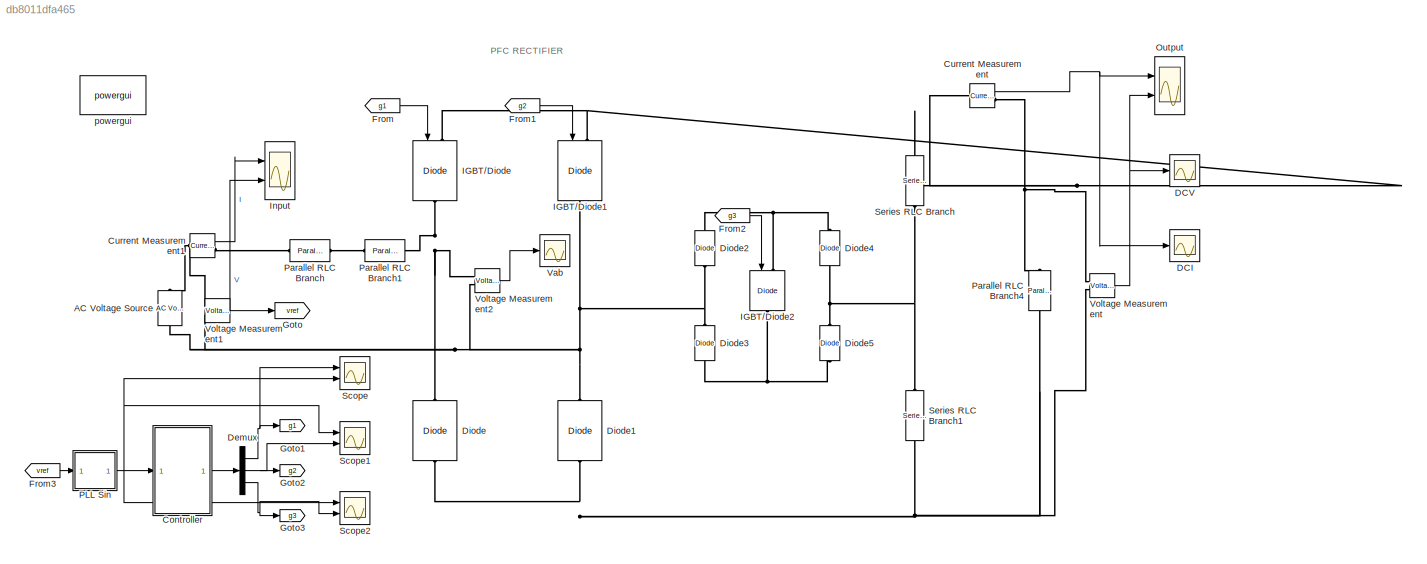
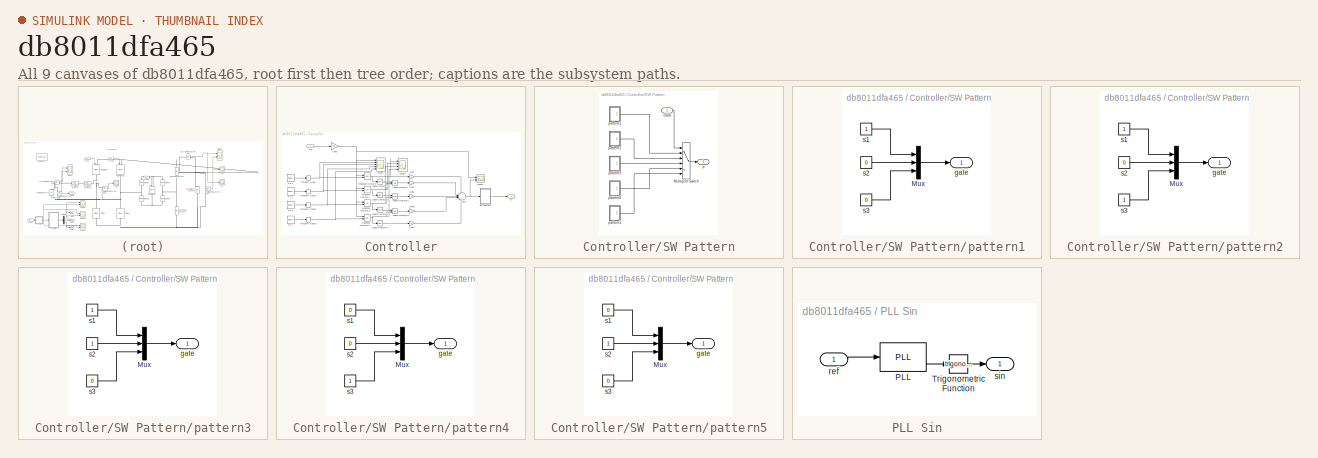
[diagram: thumbnail index - all 9 canvases of the model, root first then tree order]
MODEL slx_db8011dfa465
KIND model
CONFIG AbsTol = auto
CONFIG FixedStep = auto
CONFIG InitFcn = Ts=50e-6;\nfs=5e3;\nfreq=60;\n
CONFIG MaxStep = auto
CONFIG MinStep = auto
CONFIG RelTol = 1e-3
CONFIG SampleTimeConstraint = Unconstrained
CONFIG Solver = VariableStepAuto
CONFIG SolverMode = Auto
CONFIG SolverName = VariableStepAuto
CONFIG StartTime = 0.0
CONFIG StopTime = 1
BLOCK [Reference] AC Voltage Source  REF=powerlib/Electrical
Sources/AC Voltage Source
  Ports = [0, 0, 0, 0, 0, 1, 1]
  SourceBlock = powerlib/Electrical\nSources/AC Voltage Source
  SourceType = AC Voltage Source
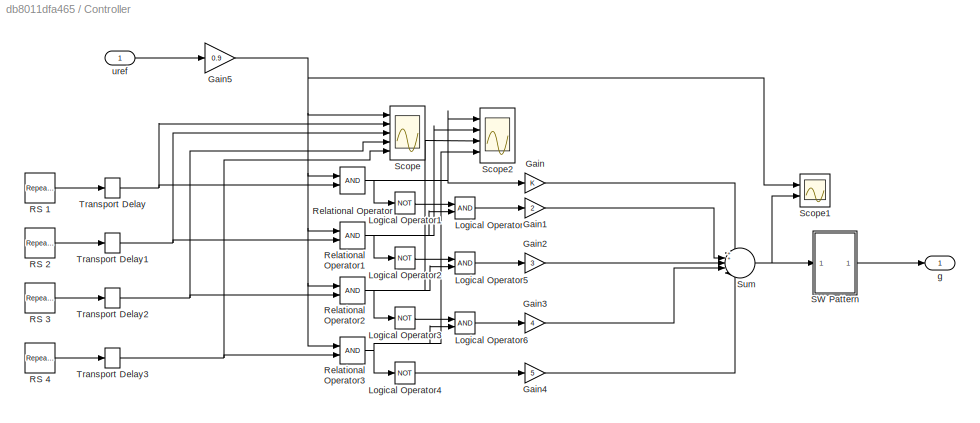
BLOCK [SubSystem] Controller
  Ports = [1, 1]
  RequestExecContextInheritance = off
  Variant = off
BLOCK [Gain] Controller/Gain
  OutDataTypeStr = Inherit: Inherit via internal rule
  ParamDataTypeStr = Inherit: Inherit via internal rule
  SaturateOnIntegerOverflow = off
BLOCK [Gain] Controller/Gain1
  Gain = 2
  OutDataTypeStr = Inherit: Inherit via internal rule
  ParamDataTypeStr = Inherit: Inherit via internal rule
  SaturateOnIntegerOverflow = off
BLOCK [Gain] Controller/Gain2
  Gain = 3
  OutDataTypeStr = Inherit: Inherit via internal rule
  ParamDataTypeStr = Inherit: Inherit via internal rule
  SaturateOnIntegerOverflow = off
BLOCK [Gain] Controller/Gain3
  Gain = 4
  OutDataTypeStr = Inherit: Inherit via internal rule
  ParamDataTypeStr = Inherit: Inherit via internal rule
  SaturateOnIntegerOverflow = off
BLOCK [Gain] Controller/Gain4
  Gain = 5
  OutDataTypeStr = Inherit: Inherit via internal rule
  ParamDataTypeStr = Inherit: Inherit via internal rule
  SaturateOnIntegerOverflow = off
BLOCK [Gain] Controller/Gain5
  Gain = 0.9
  OutDataTypeStr = Inherit: Inherit via internal rule
  ParamDataTypeStr = Inherit: Inherit via internal rule
  SaturateOnIntegerOverflow = off
BLOCK [Logic] Controller/Logical Operator
  AllPortsSameDT = off
  OutDataTypeStr = boolean
  Ports = [2, 1]
BLOCK [Logic] Controller/Logical Operator1
  AllPortsSameDT = off
  Operator = NOT
  OutDataTypeStr = boolean
  Ports = [1, 1]
BLOCK [Logic] Controller/Logical Operator2
  AllPortsSameDT = off
  Operator = NOT
  OutDataTypeStr = boolean
  Ports = [1, 1]
BLOCK [Logic] Controller/Logical Operator3
  AllPortsSameDT = off
  Operator = NOT
  OutDataTypeStr = boolean
  Ports = [1, 1]
BLOCK [Logic] Controller/Logical Operator4
  AllPortsSameDT = off
  Operator = NOT
  OutDataTypeStr = boolean
  Ports = [1, 1]
BLOCK [Logic] Controller/Logical Operator5
  AllPortsSameDT = off
  OutDataTypeStr = boolean
  Ports = [2, 1]
BLOCK [Logic] Controller/Logical Operator6
  AllPortsSameDT = off
  OutDataTypeStr = boolean
  Ports = [2, 1]
BLOCK [Reference] Controller/RS 1  REF=simulink/Sources/Repeating
Sequence
  Ports = [0, 1]
  SourceBlock = simulink/Sources/Repeating\nSequence
  SourceType = Repeating table
BLOCK [Reference] Controller/RS 2  REF=simulink/Sources/Repeating
Sequence
  Ports = [0, 1]
  SourceBlock = simulink/Sources/Repeating\nSequence
  SourceType = Repeating table
BLOCK [Reference] Controller/RS 3  REF=simulink/Sources/Repeating
Sequence
  Ports = [0, 1]
  SourceBlock = simulink/Sources/Repeating\nSequence
  SourceType = Repeating table
BLOCK [Reference] Controller/RS 4  REF=simulink/Sources/Repeating
Sequence
  Ports = [0, 1]
  SourceBlock = simulink/Sources/Repeating\nSequence
  SourceType = Repeating table
BLOCK [RelationalOperator] Controller/Relational Operator
  InputSameDT = off
  OutDataTypeStr = boolean
  Ports = [2, 1]
  ZeroCross = off
BLOCK [RelationalOperator] Controller/Relational Operator1
  InputSameDT = off
  OutDataTypeStr = boolean
  Ports = [2, 1]
  ZeroCross = off
BLOCK [RelationalOperator] Controller/Relational Operator2
  InputSameDT = off
  OutDataTypeStr = boolean
  Ports = [2, 1]
  ZeroCross = off
BLOCK [RelationalOperator] Controller/Relational Operator3
  InputSameDT = off
  OutDataTypeStr = boolean
  Ports = [2, 1]
  ZeroCross = off
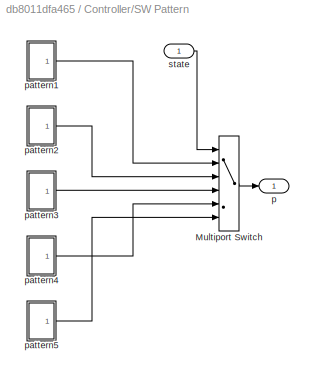
BLOCK [SubSystem] Controller/SW Pattern
  Ports = [1, 1]
  RequestExecContextInheritance = off
  Variant = off
BLOCK [MultiPortSwitch] Controller/SW Pattern/Multiport Switch
  InputSameDT = off
  Inputs = 5
  Ports = [6, 1]
  SaturateOnIntegerOverflow = off
BLOCK [Outport] Controller/SW Pattern/p
  IconDisplay = Port number
BLOCK [SubSystem] Controller/SW Pattern/pattern1
  Ports = [0, 1]
  RequestExecContextInheritance = off
  Variant = off
BLOCK [Mux] Controller/SW Pattern/pattern1/Mux
  DisplayOption = bar
  Inputs = 3
  Ports = [3, 1]
BLOCK [Outport] Controller/SW Pattern/pattern1/gate
  IconDisplay = Port number
BLOCK [Constant] Controller/SW Pattern/pattern1/s1
BLOCK [Constant] Controller/SW Pattern/pattern1/s2
  Value = 0
BLOCK [Constant] Controller/SW Pattern/pattern1/s3
  Value = 0
BLOCK [SubSystem] Controller/SW Pattern/pattern2
  Ports = [0, 1]
  RequestExecContextInheritance = off
  Variant = off
BLOCK [Mux] Controller/SW Pattern/pattern2/Mux
  DisplayOption = bar
  Inputs = 3
  Ports = [3, 1]
BLOCK [Outport] Controller/SW Pattern/pattern2/gate
  IconDisplay = Port number
BLOCK [Constant] Controller/SW Pattern/pattern2/s1
BLOCK [Constant] Controller/SW Pattern/pattern2/s2
  Value = 0
BLOCK [Constant] Controller/SW Pattern/pattern2/s3
BLOCK [SubSystem] Controller/SW Pattern/pattern3
  Ports = [0, 1]
  RequestExecContextInheritance = off
  Variant = off
BLOCK [Mux] Controller/SW Pattern/pattern3/Mux
  DisplayOption = bar
  Inputs = 3
  Ports = [3, 1]
BLOCK [Outport] Controller/SW Pattern/pattern3/gate
  IconDisplay = Port number
BLOCK [Constant] Controller/SW Pattern/pattern3/s1
BLOCK [Constant] Controller/SW Pattern/pattern3/s2
BLOCK [Constant] Controller/SW Pattern/pattern3/s3
  Value = 0
BLOCK [SubSystem] Controller/SW Pattern/pattern4
  Ports = [0, 1]
  RequestExecContextInheritance = off
  Variant = off
BLOCK [Mux] Controller/SW Pattern/pattern4/Mux
  DisplayOption = bar
  Inputs = 3
  Ports = [3, 1]
BLOCK [Outport] Controller/SW Pattern/pattern4/gate
  IconDisplay = Port number
BLOCK [Constant] Controller/SW Pattern/pattern4/s1
  Value = 0
BLOCK [Constant] Controller/SW Pattern/pattern4/s2
  Value = 0
BLOCK [Constant] Controller/SW Pattern/pattern4/s3
BLOCK [SubSystem] Controller/SW Pattern/pattern5
  Ports = [0, 1]
  RequestExecContextInheritance = off
  Variant = off
BLOCK [Mux] Controller/SW Pattern/pattern5/Mux
  DisplayOption = bar
  Inputs = 3
  Ports = [3, 1]
BLOCK [Outport] Controller/SW Pattern/pattern5/gate
  IconDisplay = Port number
BLOCK [Constant] Controller/SW Pattern/pattern5/s1
  Value = 0
BLOCK [Constant] Controller/SW Pattern/pattern5/s2
BLOCK [Constant] Controller/SW Pattern/pattern5/s3
  Value = 0
BLOCK [Inport] Controller/SW Pattern/state
  IconDisplay = Port number
BLOCK [Scope] Controller/Scope
  NumInputPorts = 5
  Ports = [5]
  ScopeSpecificationString = Simulink.scopes.TimeScopeBlockCfg('CurrentConfiguration', extmgr.ConfigurationSet(extmgr.Configuration('Core','General UI',true),extmgr.Configuration('Core','Source UI',true),extmgr.Configuration('Sources','WiredSimulink',true,'DataLoggingVariableName','ScopeData5'),extmgr.Configuration('Visuals','Time Domain',true,'SerializedDisplays',{struct('MinYLimReal','-1.32133','MaxYLimReal','1.29563','YLab...<+1463ch>
BLOCK [Scope] Controller/Scope1
  NumInputPorts = 2
  Ports = [2]
  ScopeSpecificationString = Simulink.scopes.TimeScopeBlockCfg('CurrentConfiguration', extmgr.ConfigurationSet(extmgr.Configuration('Core','General UI',true),extmgr.Configuration('Core','Source UI',true),extmgr.Configuration('Sources','WiredSimulink',true,'DataLoggingVariableName','ScopeData6'),extmgr.Configuration('Visuals','Time Domain',true,'SerializedDisplays',{struct('MinYLimReal','-1.75','MaxYLimReal','5.75','YLabelReal...<+1430ch>
BLOCK [Scope] Controller/Scope2
  NumInputPorts = 4
  Ports = [4]
  ScopeSpecificationString = Simulink.scopes.TimeScopeBlockCfg('CurrentConfiguration', extmgr.ConfigurationSet(extmgr.Configuration('Core','General UI',true),extmgr.Configuration('Core','Source UI',true),extmgr.Configuration('Sources','WiredSimulink',true,'DataLoggingVariableName','ScopeData7'),extmgr.Configuration('Visuals','Time Domain',true,'SerializedDisplays',{struct('MinYLimReal','-0.125','MaxYLimReal','1.125','YLabelRe...<+1487ch>
BLOCK [Sum] Controller/Sum
  IconShape = round
  InputSameDT = off
  Inputs = 5
  OutDataTypeStr = Inherit: Inherit via internal rule
  Ports = [5, 1]
  SaturateOnIntegerOverflow = off
BLOCK [TransportDelay] Controller/Transport Delay
  DelayTime = (1/(fs*8))*1
  Ports = [1, 1]
BLOCK [TransportDelay] Controller/Transport Delay1
  DelayTime = (1/(fs*8))*1
  Ports = [1, 1]
BLOCK [TransportDelay] Controller/Transport Delay2
  DelayTime = (1/(fs*8))*1
  Ports = [1, 1]
BLOCK [TransportDelay] Controller/Transport Delay3
  DelayTime = (1/(fs*8))*1
  Ports = [1, 1]
BLOCK [Outport] Controller/g
  IconDisplay = Port number
BLOCK [Inport] Controller/uref
  IconDisplay = Port number
BLOCK [Reference] Current Measurement  REF=powerlib/Measurements/Current Measurement
  Ports = [0, 1, 0, 0, 0, 1, 1]
  SourceBlock = powerlib/Measurements/Current Measurement
  SourceType = Current Measurement
  UserDataPersistent = on
BLOCK [Reference] Current Measurement1  REF=powerlib/Measurements/Current Measurement
  Ports = [0, 1, 0, 0, 0, 1, 1]
  SourceBlock = powerlib/Measurements/Current Measurement
  SourceType = Current Measurement
  UserDataPersistent = on
BLOCK [Scope] DCI
  Ports = [1]
  ScopeSpecificationString = Simulink.scopes.TimeScopeBlockCfg('CurrentConfiguration', extmgr.ConfigurationSet(extmgr.Configuration('Core','General UI',true),extmgr.Configuration('Core','Source UI',true),extmgr.Configuration('Sources','WiredSimulink',true,'DataLoggingVariableName','ScopeData10'),extmgr.Configuration('Visuals','Time Domain',true,'SerializedDisplays',{struct('MinYLimReal','-0.45508','MaxYLimReal','4.09541','YLa...<+1406ch>
BLOCK [Scope] DCV
  Ports = [1]
  ScopeSpecificationString = Simulink.scopes.TimeScopeBlockCfg('CurrentConfiguration', extmgr.ConfigurationSet(extmgr.Configuration('Core','General UI',true),extmgr.Configuration('Core','Source UI',true),extmgr.Configuration('Sources','WiredSimulink',true,'DataLoggingVariableName','ScopeData9'),extmgr.Configuration('Visuals','Time Domain',true,'SerializedDisplays',{struct('MinYLimReal','-36.40671','MaxYLimReal','327.63308','Y...<+1440ch>
BLOCK [Demux] Demux
  DisplayOption = bar
  Outputs = 3
  Ports = [1, 3]
BLOCK [Reference] Diode  REF=powerlib/Power
Electronics/Diode
  Ports = [0, 0, 0, 0, 0, 1, 1]
  SourceBlock = powerlib/Power\nElectronics/Diode
  SourceType = Diode
BLOCK [Reference] Diode1  REF=powerlib/Power
Electronics/Diode
  Ports = [0, 0, 0, 0, 0, 1, 1]
  SourceBlock = powerlib/Power\nElectronics/Diode
  SourceType = Diode
BLOCK [Reference] Diode2  REF=powerlib/Power
Electronics/Diode
  Ports = [0, 0, 0, 0, 0, 1, 1]
  SourceBlock = powerlib/Power\nElectronics/Diode
  SourceType = Diode
BLOCK [Reference] Diode3  REF=powerlib/Power
Electronics/Diode
  Ports = [0, 0, 0, 0, 0, 1, 1]
  SourceBlock = powerlib/Power\nElectronics/Diode
  SourceType = Diode
BLOCK [Reference] Diode4  REF=powerlib/Power
Electronics/Diode
  Ports = [0, 0, 0, 0, 0, 1, 1]
  SourceBlock = powerlib/Power\nElectronics/Diode
  SourceType = Diode
BLOCK [Reference] Diode5  REF=powerlib/Power
Electronics/Diode
  Ports = [0, 0, 0, 0, 0, 1, 1]
  SourceBlock = powerlib/Power\nElectronics/Diode
  SourceType = Diode
BLOCK [From] From
  GotoTag = g1
BLOCK [From] From1
  GotoTag = g2
BLOCK [From] From2
  GotoTag = g3
BLOCK [From] From3
  GotoTag = vref
BLOCK [Goto] Goto
  GotoTag = vref
BLOCK [Goto] Goto1
  GotoTag = g1
BLOCK [Goto] Goto2
  GotoTag = g2
BLOCK [Goto] Goto3
  GotoTag = g3
BLOCK [Reference] IGBT//Diode  REF=powerlib/Power
Electronics/IGBT//Diode
  Ports = [1, 0, 0, 0, 0, 1, 1]
  SourceBlock = powerlib/Power\nElectronics/IGBT//Diode
  SourceType = IGBT/Diode
BLOCK [Reference] IGBT//Diode1  REF=powerlib/Power
Electronics/IGBT//Diode
  Ports = [1, 0, 0, 0, 0, 1, 1]
  SourceBlock = powerlib/Power\nElectronics/IGBT//Diode
  SourceType = IGBT/Diode
BLOCK [Reference] IGBT//Diode2  REF=powerlib/Power
Electronics/IGBT//Diode
  Ports = [1, 0, 0, 0, 0, 1, 1]
  SourceBlock = powerlib/Power\nElectronics/IGBT//Diode
  SourceType = IGBT/Diode
BLOCK [Scope] Input
  NumInputPorts = 2
  Ports = [2]
  ScopeSpecificationString = Simulink.scopes.TimeScopeBlockCfg('CurrentConfiguration', extmgr.ConfigurationSet(extmgr.Configuration('Core','General UI',true),extmgr.Configuration('Core','Source UI',true),extmgr.Configuration('Sources','WiredSimulink',true),extmgr.Configuration('Visuals','Time Domain',true,'SerializedDisplays',{struct('MinYLimReal','-97.24613','MaxYLimReal','53.35628','YLabelReal','','MinYLimMag','0.00000','Ma...<+1402ch>
BLOCK [Scope] Output
  NumInputPorts = 2
  Ports = [2]
  ScopeSpecificationString = Simulink.scopes.TimeScopeBlockCfg('CurrentConfiguration', extmgr.ConfigurationSet(extmgr.Configuration('Core','General UI',true),extmgr.Configuration('Core','Source UI',true),extmgr.Configuration('Sources','WiredSimulink',true,'DataLoggingVariableName','ScopeData1'),extmgr.Configuration('Visuals','Time Domain',true,'SerializedDisplays',{struct('MinYLimReal','-36.40671','MaxYLimReal','327.63308','Y...<+1437ch>
BLOCK [SubSystem] PLL Sin
  Ports = [1, 1]
  RequestExecContextInheritance = off
  Variant = off
BLOCK [Reference] PLL Sin/PLL  REF=powerlib_meascontrol/PLL/PLL
  Ports = [1, 2]
  SourceBlock = powerlib_meascontrol/PLL/PLL
  SourceType = PLL
BLOCK [Trigonometry] PLL Sin/Trigonometric Function
  Ports = [1, 1]
BLOCK [Inport] PLL Sin/ref
  IconDisplay = Port number
BLOCK [Outport] PLL Sin/sin
  IconDisplay = Port number
BLOCK [Reference] Parallel RLC Branch  REF=powerlib/Elements/Parallel RLC Branch
  AttributesFormatString = \n
  Ports = [0, 0, 0, 0, 0, 1, 1]
  SourceBlock = powerlib/Elements/Parallel RLC Branch
  SourceType = Parallel RLC Branch
BLOCK [Reference] Parallel RLC Branch1  REF=powerlib/Elements/Parallel RLC Branch
  AttributesFormatString = \n
  Ports = [0, 0, 0, 0, 0, 1, 1]
  SourceBlock = powerlib/Elements/Parallel RLC Branch
  SourceType = Parallel RLC Branch
BLOCK [Reference] Parallel RLC Branch4  REF=powerlib/Elements/Parallel RLC Branch
  AttributesFormatString = \n
  Ports = [0, 0, 0, 0, 0, 1, 1]
  SourceBlock = powerlib/Elements/Parallel RLC Branch
  SourceType = Parallel RLC Branch
BLOCK [Scope] Scope
  NumInputPorts = 2
  Ports = [2]
  ScopeSpecificationString = Simulink.scopes.TimeScopeBlockCfg('CurrentConfiguration', extmgr.ConfigurationSet(extmgr.Configuration('Core','General UI',true),extmgr.Configuration('Core','Source UI',true),extmgr.Configuration('Sources','WiredSimulink',true,'DataLoggingVariableName','ScopeData2'),extmgr.Configuration('Visuals','Time Domain',true,'SerializedDisplays',{struct('MinYLimReal','-1.25','MaxYLimReal','1.25','YLabelReal...<+1410ch>
BLOCK [Scope] Scope1
  NumInputPorts = 2
  Ports = [2]
  ScopeSpecificationString = Simulink.scopes.TimeScopeBlockCfg('CurrentConfiguration', extmgr.ConfigurationSet(extmgr.Configuration('Core','General UI',true),extmgr.Configuration('Core','Source UI',true),extmgr.Configuration('Sources','WiredSimulink',true,'DataLoggingVariableName','ScopeData3'),extmgr.Configuration('Visuals','Time Domain',true,'SerializedDisplays',{struct('MinYLimReal','-1.25','MaxYLimReal','1.25','YLabelReal...<+1383ch>
BLOCK [Scope] Scope2
  NumInputPorts = 2
  Ports = [2]
  ScopeSpecificationString = Simulink.scopes.TimeScopeBlockCfg('CurrentConfiguration', extmgr.ConfigurationSet(extmgr.Configuration('Core','General UI',true),extmgr.Configuration('Core','Source UI',true),extmgr.Configuration('Sources','WiredSimulink',true,'DataLoggingVariableName','ScopeData4'),extmgr.Configuration('Visuals','Time Domain',true,'SerializedDisplays',{struct('MinYLimReal','-1.25','MaxYLimReal','1.25','YLabelReal...<+1410ch>
BLOCK [Reference] Series RLC Branch  REF=powerlib/Elements/Series RLC Branch
  Ports = [0, 0, 0, 0, 0, 1, 1]
  SourceBlock = powerlib/Elements/Series RLC Branch
  SourceType = Series RLC Branch
BLOCK [Reference] Series RLC Branch1  REF=powerlib/Elements/Series RLC Branch
  Ports = [0, 0, 0, 0, 0, 1, 1]
  SourceBlock = powerlib/Elements/Series RLC Branch
  SourceType = Series RLC Branch
BLOCK [Scope] Vab
  Ports = [1]
  ScopeSpecificationString = Simulink.scopes.TimeScopeBlockCfg('CurrentConfiguration', extmgr.ConfigurationSet(extmgr.Configuration('Core','General UI',true),extmgr.Configuration('Core','Source UI',true),extmgr.Configuration('Sources','WiredSimulink',true,'DataLoggingVariableName','ScopeData8'),extmgr.Configuration('Visuals','Time Domain',true,'SerializedDisplays',{struct('MinYLimReal','-346.4025','MaxYLimReal','299.99485','Y...<+1460ch>
BLOCK [Reference] Voltage Measurement  REF=powerlib/Measurements/Voltage Measurement
  Ports = [0, 1, 0, 0, 0, 2]
  SourceBlock = powerlib/Measurements/Voltage Measurement
  SourceType = Voltage Measurement
  UserDataPersistent = on
BLOCK [Reference] Voltage Measurement1  REF=powerlib/Measurements/Voltage Measurement
  Ports = [0, 1, 0, 0, 0, 2]
  SourceBlock = powerlib/Measurements/Voltage Measurement
  SourceType = Voltage Measurement
  UserDataPersistent = on
BLOCK [Reference] Voltage Measurement2  REF=powerlib/Measurements/Voltage Measurement
  Ports = [0, 1, 0, 0, 0, 2]
  SourceBlock = powerlib/Measurements/Voltage Measurement
  SourceType = Voltage Measurement
  UserDataPersistent = on
BLOCK [Reference] powergui  REF=powerlib/powergui
  Ports = []
  Priority = 1
  SourceBlock = powerlib/powergui
  SourceType = PSB option menu block
  UserDataPersistent = on
ANNOTATION (root): PFC RECTIFIER
LINE Controller/Gain1:1 -> Controller/Sum:2
LINE Controller/Gain2:1 -> Controller/Sum:3
LINE Controller/Gain3:1 -> Controller/Sum:4
LINE Controller/Gain4:1 -> Controller/Sum:5
NET Controller/Gain5:1 -> Controller/Relational Operator1:1, Controller/Relational Operator2:1, Controller/Relational Operator3:1, Controller/Relational Operator:1, Controller/Scope1:1, Controller/Scope:1
LINE Controller/Gain:1 -> Controller/Sum:1
LINE Controller/Logical Operator1:1 -> Controller/Logical Operator:1
LINE Controller/Logical Operator2:1 -> Controller/Logical Operator5:1
LINE Controller/Logical Operator3:1 -> Controller/Logical Operator6:1
LINE Controller/Logical Operator4:1 -> Controller/Gain4:1
LINE Controller/Logical Operator5:1 -> Controller/Gain2:1
LINE Controller/Logical Operator6:1 -> Controller/Gain3:1
LINE Controller/Logical Operator:1 -> Controller/Gain1:1
LINE Controller/RS 1:1 -> Controller/Transport Delay:1
LINE Controller/RS 2:1 -> Controller/Transport Delay1:1
LINE Controller/RS 3:1 -> Controller/Transport Delay2:1
LINE Controller/RS 4:1 -> Controller/Transport Delay3:1
NET Controller/Relational Operator1:1 -> Controller/Logical Operator2:1, Controller/Logical Operator:2, Controller/Scope2:2
NET Controller/Relational Operator2:1 -> Controller/Logical Operator3:1, Controller/Logical Operator5:2, Controller/Scope2:3
NET Controller/Relational Operator3:1 -> Controller/Logical Operator4:1, Controller/Logical Operator6:2, Controller/Scope2:4
NET Controller/Relational Operator:1 -> Controller/Gain:1, Controller/Logical Operator1:1, Controller/Scope2:1
LINE Controller/SW Pattern/Multiport Switch:1 -> Controller/SW Pattern/p:1
LINE Controller/SW Pattern/pattern1/Mux:1 -> Controller/SW Pattern/pattern1/gate:1
LINE Controller/SW Pattern/pattern1/s1:1 -> Controller/SW Pattern/pattern1/Mux:1
LINE Controller/SW Pattern/pattern1/s2:1 -> Controller/SW Pattern/pattern1/Mux:2
LINE Controller/SW Pattern/pattern1/s3:1 -> Controller/SW Pattern/pattern1/Mux:3
LINE Controller/SW Pattern/pattern1:1 -> Controller/SW Pattern/Multiport Switch:2
LINE Controller/SW Pattern/pattern2/Mux:1 -> Controller/SW Pattern/pattern2/gate:1
LINE Controller/SW Pattern/pattern2/s1:1 -> Controller/SW Pattern/pattern2/Mux:1
LINE Controller/SW Pattern/pattern2/s2:1 -> Controller/SW Pattern/pattern2/Mux:2
LINE Controller/SW Pattern/pattern2/s3:1 -> Controller/SW Pattern/pattern2/Mux:3
LINE Controller/SW Pattern/pattern2:1 -> Controller/SW Pattern/Multiport Switch:3
LINE Controller/SW Pattern/pattern3/Mux:1 -> Controller/SW Pattern/pattern3/gate:1
LINE Controller/SW Pattern/pattern3/s1:1 -> Controller/SW Pattern/pattern3/Mux:1
LINE Controller/SW Pattern/pattern3/s2:1 -> Controller/SW Pattern/pattern3/Mux:2
LINE Controller/SW Pattern/pattern3/s3:1 -> Controller/SW Pattern/pattern3/Mux:3
LINE Controller/SW Pattern/pattern3:1 -> Controller/SW Pattern/Multiport Switch:4
LINE Controller/SW Pattern/pattern4/Mux:1 -> Controller/SW Pattern/pattern4/gate:1
LINE Controller/SW Pattern/pattern4/s1:1 -> Controller/SW Pattern/pattern4/Mux:1
LINE Controller/SW Pattern/pattern4/s2:1 -> Controller/SW Pattern/pattern4/Mux:2
LINE Controller/SW Pattern/pattern4/s3:1 -> Controller/SW Pattern/pattern4/Mux:3
LINE Controller/SW Pattern/pattern4:1 -> Controller/SW Pattern/Multiport Switch:5
LINE Controller/SW Pattern/pattern5/Mux:1 -> Controller/SW Pattern/pattern5/gate:1
LINE Controller/SW Pattern/pattern5/s1:1 -> Controller/SW Pattern/pattern5/Mux:1
LINE Controller/SW Pattern/pattern5/s2:1 -> Controller/SW Pattern/pattern5/Mux:2
LINE Controller/SW Pattern/pattern5/s3:1 -> Controller/SW Pattern/pattern5/Mux:3
LINE Controller/SW Pattern/pattern5:1 -> Controller/SW Pattern/Multiport Switch:6
LINE Controller/SW Pattern/state:1 -> Controller/SW Pattern/Multiport Switch:1
LINE Controller/SW Pattern:1 -> Controller/g:1
NET Controller/Sum:1 -> Controller/SW Pattern:1, Controller/Scope1:2
NET Controller/Transport Delay1:1 -> Controller/Relational Operator1:2, Controller/Scope:3
NET Controller/Transport Delay2:1 -> Controller/Relational Operator2:2, Controller/Scope:4
NET Controller/Transport Delay3:1 -> Controller/Relational Operator3:2, Controller/Scope:5
NET Controller/Transport Delay:1 -> Controller/Relational Operator:2, Controller/Scope:2
LINE Controller/uref:1 -> Controller/Gain5:1
LINE Controller:1 -> Demux:1
LINE Current Measurement1:1 -> Input:1
NET Current Measurement:1 -> DCI:1, Output:1
NET Demux:1 -> Goto1:1, Scope:1
NET Demux:2 -> Goto2:1, Scope1:2
NET Demux:3 -> Goto3:1, Scope2:2
LINE From1:1 -> IGBT//Diode1:1
LINE From2:1 -> IGBT//Diode2:1
LINE From3:1 -> PLL Sin:1
LINE From:1 -> IGBT//Diode:1
LINE PLL Sin/PLL:2 -> PLL Sin/Trigonometric Function:1
LINE PLL Sin/Trigonometric Function:1 -> PLL Sin/sin:1
LINE PLL Sin/ref:1 -> PLL Sin/PLL:1
NET PLL Sin:1 -> Controller:1, Scope1:1, Scope2:1, Scope:2
NET Voltage Measurement1:1 -> Goto:1, Input:2
LINE Voltage Measurement2:1 -> Vab:1
NET Voltage Measurement:1 -> DCV:1, Output:2
PNET net1: AC Voltage Source:LConn1 -- Diode1:RConn1 -- Diode2:LConn1 -- Diode3:RConn1 -- IGBT//Diode1:RConn1 -- Voltage Measurement1:LConn2 -- Voltage Measurement2:LConn2
PNET net2: AC Voltage Source:RConn1 -- Current Measurement1:LConn1 -- Voltage Measurement1:LConn1
PLINE Current Measurement1:RConn1 -- Parallel RLC Branch:LConn1
PNET net3: Current Measurement:LConn1 -- IGBT//Diode1:LConn1 -- IGBT//Diode:LConn1 -- Series RLC Branch:LConn1
PNET net4: Current Measurement:RConn1 -- Parallel RLC Branch4:LConn1 -- Voltage Measurement:LConn1
PNET net5: Diode1:LConn1 -- Diode:LConn1 -- Parallel RLC Branch4:RConn1 -- Series RLC Branch1:RConn1 -- Voltage Measurement:LConn2
PNET net6: Diode2:RConn1 -- Diode4:RConn1 -- IGBT//Diode2:LConn1
PNET net7: Diode3:LConn1 -- Diode5:LConn1 -- IGBT//Diode2:RConn1
PNET net8: Diode4:LConn1 -- Diode5:RConn1 -- Series RLC Branch1:LConn1 -- Series RLC Branch:RConn1
PNET net9: Diode:RConn1 -- IGBT//Diode:RConn1 -- Parallel RLC Branch1:RConn1 -- Voltage Measurement2:LConn1
PLINE Parallel RLC Branch1:LConn1 -- Parallel RLC Branch:RConn1
note: NET lines group one-source signal fan-out (src -> all destinations, sorted); 1:1 wires keep LINE; PNET lines group multi-terminal physical nets as a canonical sorted terminal list (undirected conserving connections); 2-terminal nets keep the pairwise PLINE form
